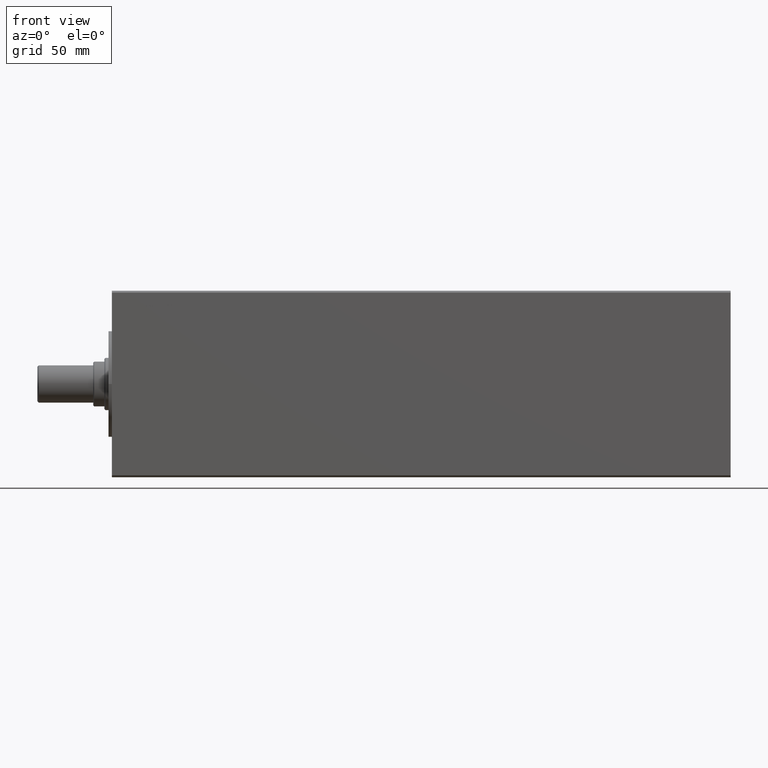
[diagram: clean part render]
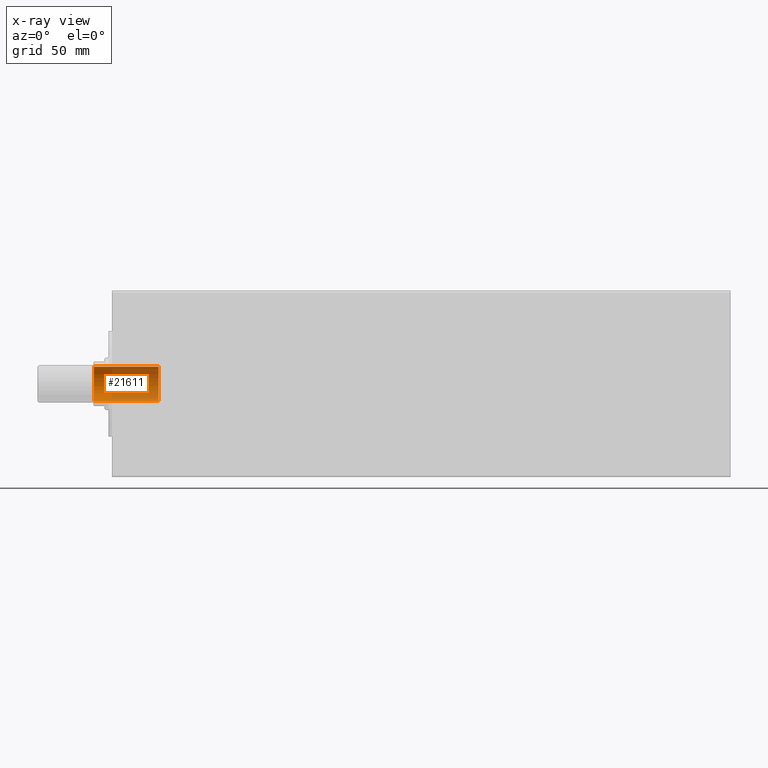
[diagram: x-ray — body ghosted, one internal face saturated and labeled with its STEP entity id]
A machine part, front view, then the same camera in x-ray: the body is ghosted and one INTERNAL B-rep face — a face not visible from any outside direction — is saturated and labeled: STEP entity #21611.
In plain terms, the highlighted cylindrical surface (edge-blend (fillet) strip) has radius 9.25 mm, axis along (-1, 0, 0).
Its self-contained STEP definition (entity closure, byte-faithful):
#1614 = CIRCLE ( 'NONE', #10910, 9.249999999999996447 ) ;
#2192 = DIRECTION ( 'NONE',  ( 1.000000000000000000, 0.000000000000000000, 0.000000000000000000 ) ) ;
#2550 = LINE ( 'NONE', #23362, #7375 ) ;
#4265 = CARTESIAN_POINT ( 'NONE',  ( 0.000000000000000000, 0.000000000000000000, 323.9000000000000341 ) ) ;
#5409 = ORIENTED_EDGE ( 'NONE', *, *, #19132, .T. ) ;
#7375 = VECTOR ( 'NONE', #30732, 1000.000000000000000 ) ;
#8255 = DIRECTION ( 'NONE',  ( 1.000000000000000000, 0.000000000000000000, 0.000000000000000000 ) ) ;
#10097 = VERTEX_POINT ( 'NONE', #30616 ) ;
#10910 = AXIS2_PLACEMENT_3D ( 'NONE', #4265, #11613, #8255 ) ;
#11044 = CARTESIAN_POINT ( 'NONE',  ( -9.249999999999996447, 1.132798289211301304E-15, 323.9000000000000341 ) ) ;
#11613 = DIRECTION ( 'NONE',  ( 0.000000000000000000, 0.000000000000000000, 1.000000000000000000 ) ) ;
#12467 = CARTESIAN_POINT ( 'NONE',  ( 0.000000000000000000, 0.000000000000000000, 289.1999999999999886 ) ) ;
#13270 = VERTEX_POINT ( 'NONE', #23986 ) ;
#14253 = CARTESIAN_POINT ( 'NONE',  ( 0.000000000000000000, 0.000000000000000000, 324.2000000000000455 ) ) ;
#14458 = LINE ( 'NONE', #24132, #39334 ) ;
#14467 = DIRECTION ( 'NONE',  ( 1.000000000000000000, 0.000000000000000000, 0.000000000000000000 ) ) ;
#16605 = VERTEX_POINT ( 'NONE', #11044 ) ;
#17231 = EDGE_CURVE ( 'NONE', #10097, #16605, #14458, .T. ) ;
#17633 = CYLINDRICAL_SURFACE ( 'NONE', #31677, 9.249999999999996447 ) ;
#19132 = EDGE_CURVE ( 'NONE', #23960, #16605, #1614, .T. ) ;
#21611 = ADVANCED_FACE ( 'NONE', ( #35083 ), #17633, .F. ) ;
#23362 = CARTESIAN_POINT ( 'NONE',  ( 9.249999999999996447, 0.000000000000000000, 324.2000000000000455 ) ) ;
#23960 = VERTEX_POINT ( 'NONE', #26067 ) ;
#23986 = CARTESIAN_POINT ( 'NONE',  ( 9.249999999999994671, 0.000000000000000000, 289.1999999999999886 ) ) ;
#24132 = CARTESIAN_POINT ( 'NONE',  ( -9.249999999999996447, 1.132798289211301304E-15, 324.2000000000000455 ) ) ;
#25687 = DIRECTION ( 'NONE',  ( -0.000000000000000000, -0.000000000000000000, 1.000000000000000000 ) ) ;
#26067 = CARTESIAN_POINT ( 'NONE',  ( 9.249999999999996447, 0.000000000000000000, 323.9000000000000341 ) ) ;
#26695 = ORIENTED_EDGE ( 'NONE', *, *, #29106, .F. ) ;
#26949 = ORIENTED_EDGE ( 'NONE', *, *, #27913, .T. ) ;
#27913 = EDGE_CURVE ( 'NONE', #13270, #23960, #2550, .T. ) ;
#28136 = DIRECTION ( 'NONE',  ( -0.000000000000000000, -0.000000000000000000, 1.000000000000000000 ) ) ;
#29106 = EDGE_CURVE ( 'NONE', #13270, #10097, #32414, .T. ) ;
#30616 = CARTESIAN_POINT ( 'NONE',  ( -9.249999999999994671, 1.132798289211300909E-15, 289.1999999999999886 ) ) ;
#30732 = DIRECTION ( 'NONE',  ( -0.000000000000000000, -0.000000000000000000, 1.000000000000000000 ) ) ;
#31677 = AXIS2_PLACEMENT_3D ( 'NONE', #14253, #34434, #14467 ) ;
#32414 = CIRCLE ( 'NONE', #35998, 9.249999999999994671 ) ;
#32982 = EDGE_LOOP ( 'NONE', ( #41171, #26695, #26949, #5409 ) ) ;
#34434 = DIRECTION ( 'NONE',  ( -0.000000000000000000, -0.000000000000000000, 1.000000000000000000 ) ) ;
#35083 = FACE_OUTER_BOUND ( 'NONE', #32982, .T. ) ;
#35998 = AXIS2_PLACEMENT_3D ( 'NONE', #12467, #25687, #2192 ) ;
#39334 = VECTOR ( 'NONE', #28136, 1000.000000000000000 ) ;
#41171 = ORIENTED_EDGE ( 'NONE', *, *, #17231, .F. ) ;